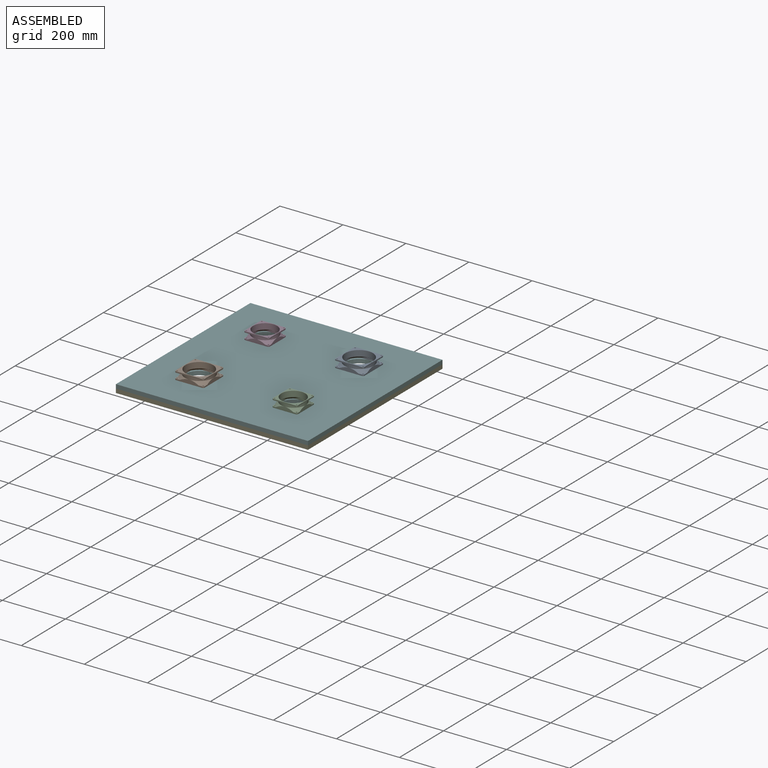
[diagram: assembled view]
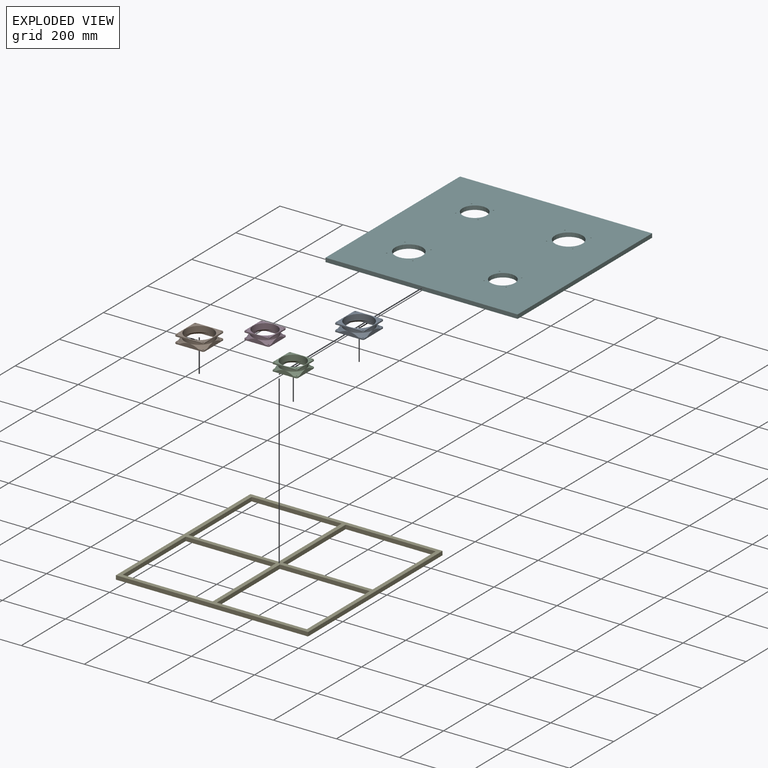
[diagram: exploded view]
GUIDED TOUR — MATED ASSEMBLY (Onshape document 30d36e8006467c0f0e39ad6a, AutoMate assembly 30d36e8006467c0f0e39ad6a_4de7a1119da5afe038f32a44_c5c404d7d82b2bcde68ec97a_default)

This assembly has 6 components, labeled P0..P5 below (a component is one placed occurrence of a part; the same part can appear more than once), held together by 15 mates. A mate is a constraint between two components; its type names the relative motion it leaves free:
  CYLINDRICAL — leaves both rotation about and translation along the listed axis free,
  PLANAR — leaves sliding in the plane through the listed point (normal = the listed direction) and rotation about that normal free.
Axis/direction vectors are unit vectors and 'through' points are millimeter coordinates, both in the assembly's world frame.

MATES
  1. CYLINDRICAL "Cylindrical 3": P2 <-> P5, axis (0.000, 0.000, -1.000) through (238.99, 5.92, 19.59) mm
  2. CYLINDRICAL "Cylindrical 7": P2 <-> P5, axis (0.000, 0.000, -1.000) through (203.84, 41.07, 8.20) mm
  3. PLANAR "Planar 4": P5 <-> P0, direction (0.000, 0.000, 1.000) through (89.77, 155.14, 3.34) mm
  4. PLANAR "Planar 1": P4 <-> P5, direction (0.000, 0.000, 1.000) through (89.77, 155.14, -9.36) mm
  5. PLANAR "Planar 5": P3 <-> P5, direction (0.000, 0.000, -1.000) through (-21.36, 328.71, 3.34) mm
  6. PLANAR "Planar 6": P5 <-> P2, direction (0.000, 0.000, 1.000) through (89.77, 155.14, 3.34) mm
  7. CYLINDRICAL "Cylindrical 8": P5 <-> P0, axis (0.000, 0.000, -1.000) through (197.65, 263.02, -3.01) mm
  8. CYLINDRICAL "Cylindrical 6": P1 <-> P5, axis (0.000, 0.000, -1.000) through (-18.11, 47.26, 5.34) mm
  9. CYLINDRICAL "Cylindrical 2": P3 <-> P5, axis (0.000, 0.000, -1.000) through (-59.46, 304.37, 19.59) mm
  10. CYLINDRICAL "Cylindrical 1": P0 <-> P5, axis (0.000, 0.000, -1.000) through (238.99, 304.37, 19.59) mm
  11. PLANAR "Planar 3": P5 <-> P4, direction (-1.000, 0.000, 0.000) through (-215.03, 155.14, -3.01) mm
  12. PLANAR "Planar 2": P5 <-> P4, direction (0.000, -1.000, 0.000) through (89.77, -149.66, -3.01) mm
  13. CYLINDRICAL "Cylindrical 4": P1 <-> P5, axis (0.000, 0.000, -1.000) through (-59.46, 5.92, 19.59) mm
  14. PLANAR "Planar 7": P1 <-> P5, direction (0.000, 0.000, -1.000) through (-59.46, 5.92, 3.34) mm
  15. CYLINDRICAL "Cylindrical 5": P5 <-> P3, axis (0.000, 0.000, -1.000) through (-24.30, 269.21, -3.01) mm

ASSEMBLY ORDER
  1. P3 — the base component [order verified]
  2. P1 [order verified]
  3. P2 [order verified]
  4. P0 [order verified]
  5. P5 [order verified]
  6. P4 [order verified]
Order-tag legend:
  [order verified] — this step's position reverses a verified removal order: the component was checked to insert without passing through the ones already placed.

Of the 6 components, 6 carry the full construction recipe — the FeatureScript program that regenerates the part's solid from scratch; the rest are supplied as boundary geometry only.
Each toured component is shown spotlighted twice — in the assembled view, then in the exploded view, where a leader line traces a displaced component back to its assembled socket (saturated green if recipe-attached, orange if geometry-only; every other component desaturated gray) — followed by its recipe or geometry summary and the mates that hold it.
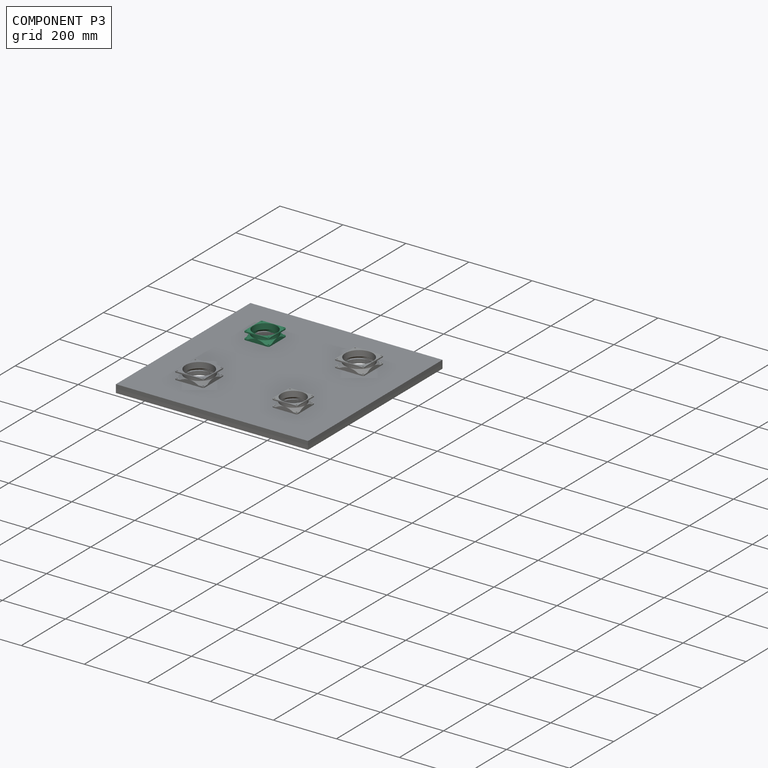
[diagram: component P3 — assembled]
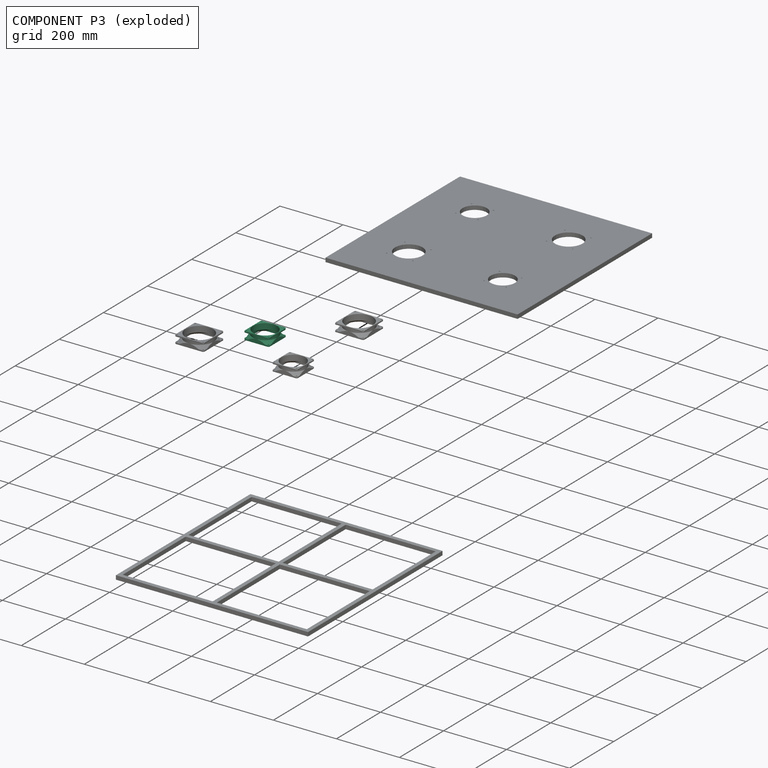
[diagram: component P3 — exploded]
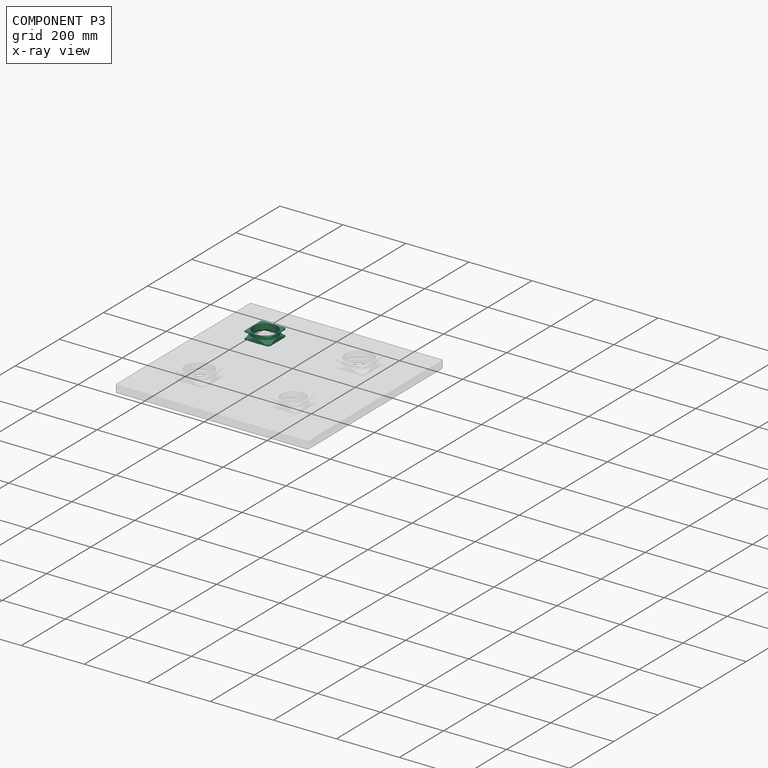
[diagram: component P3 — x-ray view]
COMPONENT P3 — same part as P2 (CADFS 00164789); its construction recipe is shown at P2.
Held by: PLANAR mate "Planar 5" to P5; CYLINDRICAL mate "Cylindrical 2" to P5; CYLINDRICAL mate "Cylindrical 5" to P5.
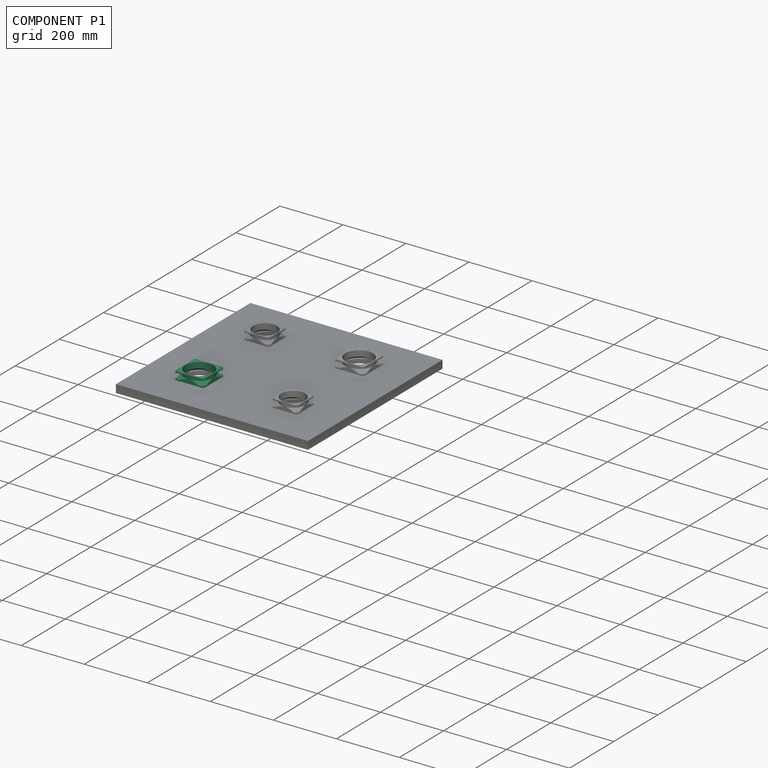
[diagram: component P1 — assembled]
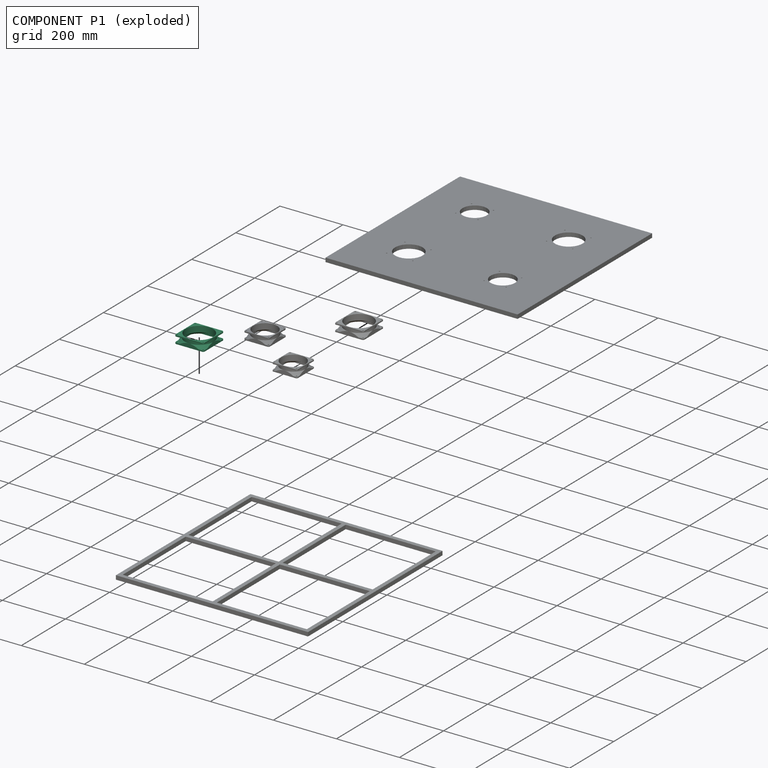
[diagram: component P1 — exploded]
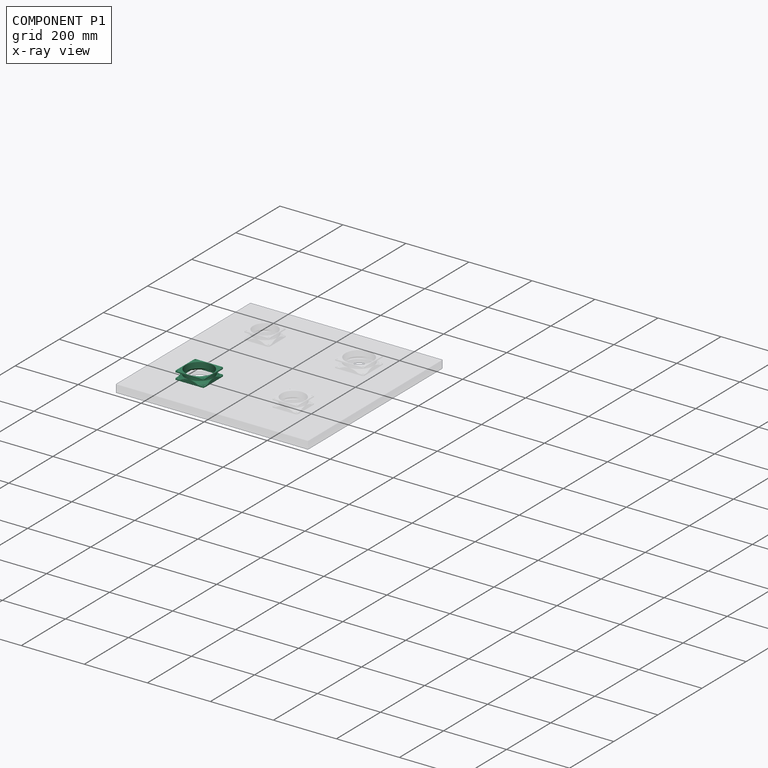
[diagram: component P1 — x-ray view]
COMPONENT P1 — same part as P0 (CADFS 00164776); its construction recipe is shown at P0.
Held by: CYLINDRICAL mate "Cylindrical 6" to P5; CYLINDRICAL mate "Cylindrical 4" to P5; PLANAR mate "Planar 7" to P5.
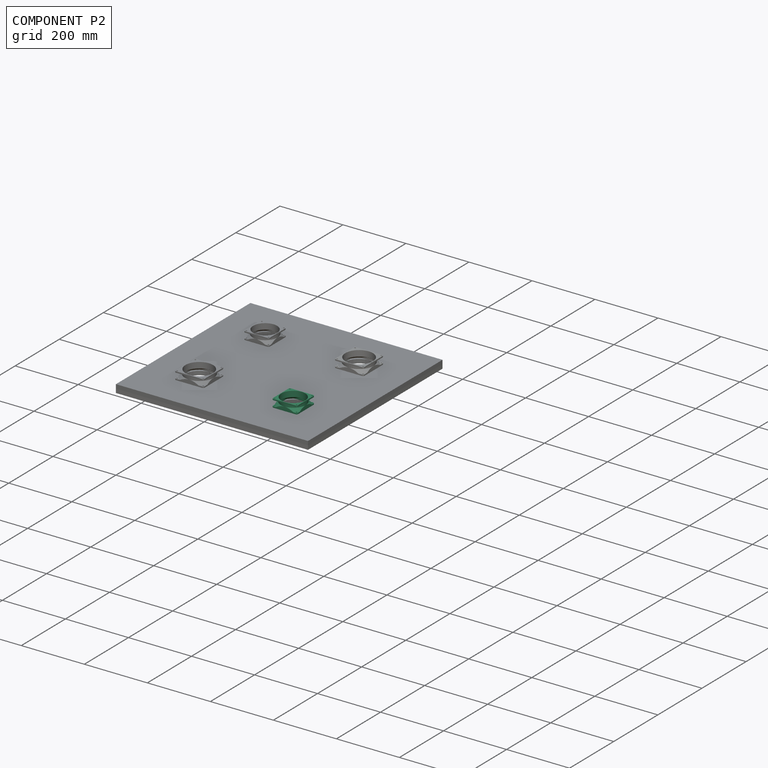
[diagram: component P2 — assembled]
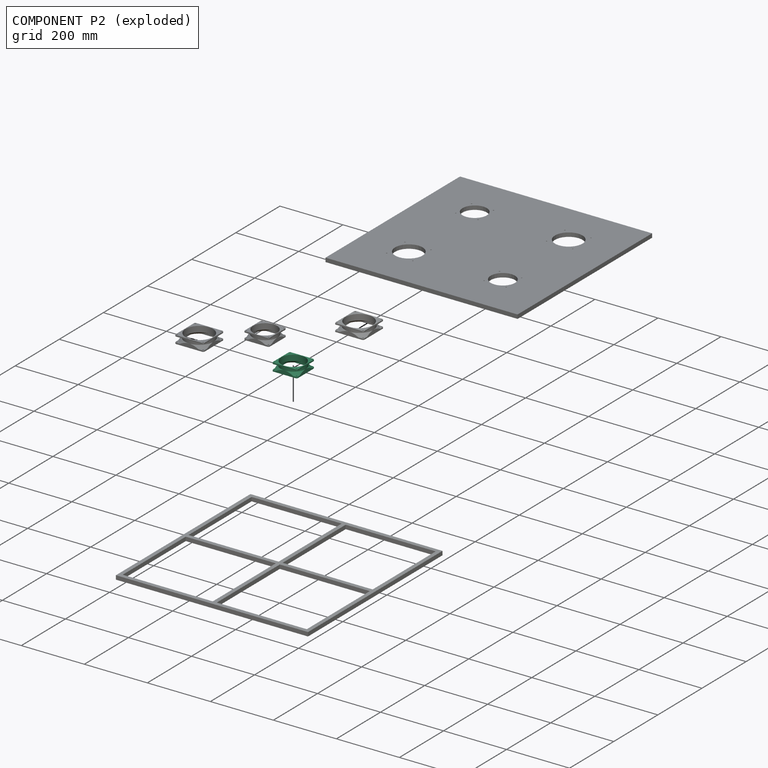
[diagram: component P2 — exploded]
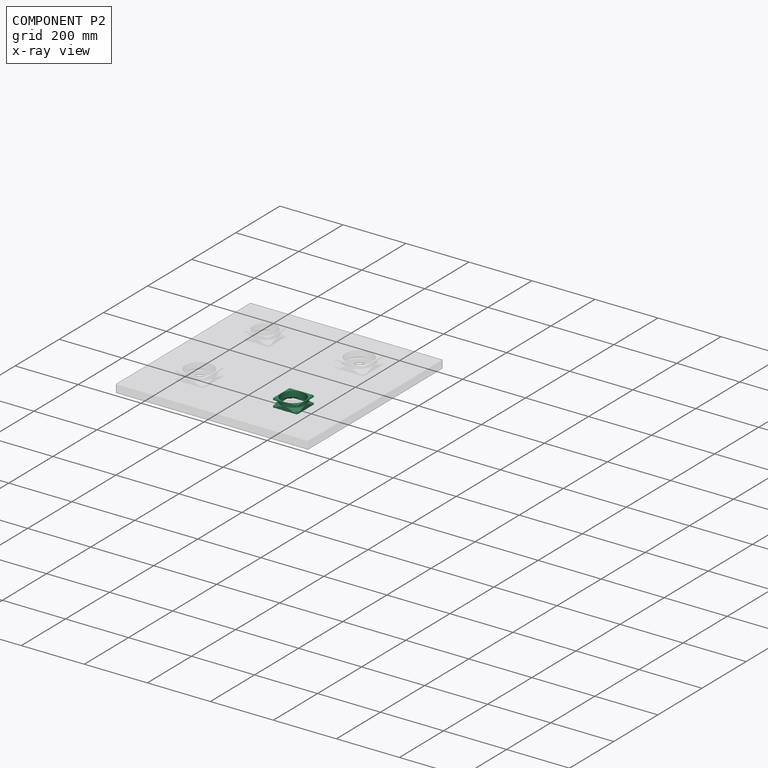
[diagram: component P2 — x-ray view]
COMPONENT P2 — recipe-attached (CADFS 00164789, mesh-verified: the recipe's output STEP matches this component's geometry to below the mesh-comparison resolution (tessellation chordal tolerance ~0.173 mm)).
Held by: CYLINDRICAL mate "Cylindrical 3" to P5; CYLINDRICAL mate "Cylindrical 7" to P5; PLANAR mate "Planar 6" to P5.
Construction recipe (FeatureScript — the CAD program that rebuilds this solid; sketch coordinates are in the units given by the * unit suffixes, e.g. mm):

FeatureScript 1511;
import(path : "onshape/std/geometry.fs", version : "1511.0");
import(path : "onshape/std/common.fs", version : "1511.0");
const mm = millimeter;
const VERTEX = EntityType.VERTEX;
const EDGE = EntityType.EDGE;
const FACE = EntityType.FACE;
const BODY = EntityType.BODY;
function v(x, y){return vector(x, y);}
function OD(order){return orderDisambiguation(order);}
function OSD(set){return originalSetDisambiguation(set);}
function TD(topology){return topologyDisambiguation(topology);}
function TDD(query){return trueDependencyDisambiguation(query);}
function sQuery(a, b, c) {return sketchEntityQuery(a, b, c);}

annotation { "Feature Type Name" : "Feature", "Feature Type Description" : "" }
export const myFeature = defineFeature(function(context is Context, id is Id, definition is map)
    precondition{}
    {
        {
            var Q0;
            Q0=qCreatedBy(makeId("Top.planeOp"),FACE);
            var sketch = newSketch(context, id + "F0", { "sketchPlane" : qUnion([Q0])});
            skLineSegment(sketch, "E0.bottom", {"start": v(39.69, 39.69) * mm, "end": v(-39.69, 39.69) * mm});
            skLineSegment(sketch, "E0.top", {"start": v(39.69, -39.69) * mm, "end": v(-39.69, -39.69) * mm});
            skLineSegment(sketch, "E0.left", {"start": v(39.69, 39.69) * mm, "end": v(39.69, -39.69) * mm});
            skLineSegment(sketch, "E0.right", {"start": v(-39.69, 39.69) * mm, "end": v(-39.69, -39.69) * mm});
            skPoint(sketch, "E0.middle", {"position": v(0, 0) * mm});
            skCircle(sketch, "E1", {"center": v(0, 0) * mm, "radius": 38.1 * mm});
            skLineSegment(sketch, "E2", {"start": v(35.15, 39.69) * mm, "end": v(35.15, 35.15) * mm, "construction": true});
            skLineSegment(sketch, "E3", {"start": v(35.15, 35.15) * mm, "end": v(39.69, 35.15) * mm, "construction": true});
            skLineSegment(sketch, "E4.bottom", {"start": v(35.15, 35.15) * mm, "end": v(-35.15, 35.15) * mm, "construction": true});
            skLineSegment(sketch, "E4.top", {"start": v(35.15, -35.15) * mm, "end": v(-35.15, -35.15) * mm, "construction": true});
            skLineSegment(sketch, "E4.left", {"start": v(35.15, 35.15) * mm, "end": v(35.15, -35.15) * mm, "construction": true});
            skLineSegment(sketch, "E4.right", {"start": v(-35.15, 35.15) * mm, "end": v(-35.15, -35.15) * mm, "construction": true});
            skCircle(sketch, "E5", {"center": v(35.15, 35.15) * mm, "radius": 2.15 * mm});
            skCircle(sketch, "E6", {"center": v(-35.15, 35.15) * mm, "radius": 2.15 * mm});
            skCircle(sketch, "E7", {"center": v(-35.15, -35.15) * mm, "radius": 2.15 * mm});
            skCircle(sketch, "E8", {"center": v(35.15, -35.15) * mm, "radius": 2.15 * mm});
            skSolve(sketch);
        }
        {
            var Q0;
            Q0=qSketchRegion(id+"F0",true);
            extrude(context, id + "F1", {"entities" : qUnion([Q0]), "depth" : 25.4 * mm});
        }
        {
            var Q0;
            Q0=makeQuery(id+"F1.opExtrude","SWEPT_EDGE",EDGE,{"disambiguationData":[OSD([sQuery(id+"F0.wireOp",EDGE,"E0.bottom"),sQuery(id+"F0.wireOp",EDGE,"E0.left")])]});
            var Q1;
            Q1=makeQuery(id+"F1.opExtrude","SWEPT_EDGE",EDGE,{"disambiguationData":[OSD([sQuery(id+"F0.wireOp",EDGE,"E0.top"),sQuery(id+"F0.wireOp",EDGE,"E0.right")])]});
            var Q2;
            Q2=makeQuery(id+"F1.opExtrude","SWEPT_EDGE",EDGE,{"disambiguationData":[OSD([sQuery(id+"F0.wireOp",EDGE,"E0.top"),sQuery(id+"F0.wireOp",EDGE,"E0.left")])]});
            var Q3;
            Q3=makeQuery(id+"F1.opExtrude","SWEPT_EDGE",EDGE,{"disambiguationData":[OSD([sQuery(id+"F0.wireOp",EDGE,"E0.bottom"),sQuery(id+"F0.wireOp",EDGE,"E0.right")])]});
            fillet(context, id + "F2", {"entities" : qUnion([Q0, Q1, Q2, Q3]), "radius" : 4.53 * mm, "tangentPropagation" : true, "allowEdgeOverflow" : false});
        }
        {
            var Q0;
            Q0=qCreatedBy(makeId("Right.planeOp"),FACE);
            var sketch = newSketch(context, id + "F3", { "sketchPlane" : qUnion([Q0])});
            skLineSegment(sketch, "E9.bottom", {"start": v(39.69, 21.4) * mm, "end": v(65.09, 21.4) * mm});
            skLineSegment(sketch, "E9.top", {"start": v(39.69, 4) * mm, "end": v(65.09, 4) * mm});
            skLineSegment(sketch, "E9.left", {"start": v(39.69, 21.4) * mm, "end": v(39.69, 4) * mm});
            skLineSegment(sketch, "E9.right", {"start": v(65.09, 21.4) * mm, "end": v(65.09, 4) * mm});
            skLineSegment(sketch, "E10", {"start": v(39.69, 21.4) * mm, "end": v(39.69, 25.4) * mm, "construction": true});
            skLineSegment(sketch, "E11", {"start": v(39.69, 4) * mm, "end": v(39.69, 0) * mm, "construction": true});
            skSolve(sketch);
        }
        {
            var Q0;
            Q0=qSketchRegion(id+"F3",true);
            var Q1;
            Q1=makeQuery(id+"F1.opExtrude","SWEPT_FACE",FACE,{"disambiguationData":[OSD([sQuery(id+"F0.wireOp",EDGE,"E1")])]});
            revolve(context, id + "F4", {"operationType" : NewBodyOperationType.REMOVE, "entities" : qUnion([Q0]), "axis" : qUnion([Q1]), "revolveType" : RevolveType.FULL, "oppositeDirection" : true});
        }
        {
            var Q0;
            {var subQ0=sQuery(id+"F3.wireOp",EDGE,"E9.top");var subQ1=sQuery(id+"F3.wireOp",EDGE,"E9.left");Q0=makeQuery(id+"F4.boolean.opBoolean","COPY",EDGE,{"disambiguationData":[TD([makeQuery(id+"F1.opExtrude","SWEPT_FACE",FACE,{"disambiguationData":[OSD([sQuery(id+"F0.wireOp",EDGE,"E0.bottom")])]}),makeQuery(id+"F1.opExtrude","SWEPT_FACE",FACE,{"disambiguationData":[OSD([sQuery(id+"F0.wireOp",EDGE,"E0.left")])]}),makeQuery(id+"F4.opRevolve","SWEPT_FACE",FACE,{"disambiguationData":[OSD([subQ0])]}),makeQuery(id+"F4.opRevolve","SWEPT_FACE",FACE,{"disambiguationData":[OSD([subQ1])]})])],"derivedFrom":makeQuery(id+"F4.opRevolve","SWEPT_EDGE",EDGE,{"disambiguationData":[OSD([subQ0,subQ1])]})});}
            chamfer(context, id + "F5", {"entities" : qUnion([Q0]), "width" : 8.7 * mm, "tangentPropagation" : true});
        }
        {
            var Q0;
            Q0=makeQuery(id+"F1.opExtrude","CAP_EDGE",EDGE,{"disambiguationData":[OSD([sQuery(id+"F0.wireOp",EDGE,"E1")])],"isStart":true});
            chamfer(context, id + "F6", {"entities" : qUnion([Q0]), "width" : 7.11 * mm, "tangentPropagation" : true});
        }
        {
            var Q0;
            Q0=makeQuery(id+"F6.opChamfer","SPLIT",FACE,{"disambiguationData":[OD(0.0)],"derivedFrom":makeQuery(id+"F1.opExtrude","CAP_FACE",FACE,{"disambiguationData":[OSD([sQuery(id+"F0.wireOp",EDGE,"E0.bottom"),sQuery(id+"F0.wireOp",EDGE,"E0.top"),sQuery(id+"F0.wireOp",EDGE,"E0.left"),sQuery(id+"F0.wireOp",EDGE,"E0.right"),sQuery(id+"F0.wireOp",EDGE,"E1"),sQuery(id+"F0.wireOp",EDGE,"E5"),sQuery(id+"F0.wireOp",EDGE,"E6"),sQuery(id+"F0.wireOp",EDGE,"E7"),sQuery(id+"F0.wireOp",EDGE,"E8")])],"isStart":true})});
            var sketch = newSketch(context, id + "F7", { "sketchPlane" : qUnion([Q0])});
            skLineSegment(sketch, "E12.bottom", {"start": v(24.34, -39.69) * mm, "end": v(-24.34, -39.69) * mm});
            skLineSegment(sketch, "E12.top", {"start": v(24.34, -38.1) * mm, "end": v(-24.34, -38.1) * mm});
            skLineSegment(sketch, "E12.left", {"start": v(24.34, -39.69) * mm, "end": v(24.34, -38.1) * mm});
            skLineSegment(sketch, "E12.right", {"start": v(-24.34, -39.69) * mm, "end": v(-24.34, -38.1) * mm});
            skLineSegment(sketch, "E13.bottom", {"start": v(38.1, 24.34) * mm, "end": v(39.69, 24.34) * mm});
            skLineSegment(sketch, "E13.top", {"start": v(38.1, -24.34) * mm, "end": v(39.69, -24.34) * mm});
            skLineSegment(sketch, "E13.left", {"start": v(38.1, 24.34) * mm, "end": v(38.1, -24.34) * mm});
            skLineSegment(sketch, "E13.right", {"start": v(39.69, 24.34) * mm, "end": v(39.69, -24.34) * mm});
            skLineSegment(sketch, "E14.bottom", {"start": v(-38.1, -24.34) * mm, "end": v(-39.69, -24.34) * mm});
            skLineSegment(sketch, "E14.top", {"start": v(-38.1, 24.34) * mm, "end": v(-39.69, 24.34) * mm});
            skLineSegment(sketch, "E14.left", {"start": v(-38.1, -24.34) * mm, "end": v(-38.1, 24.34) * mm});
            skLineSegment(sketch, "E14.right", {"start": v(-39.69, -24.34) * mm, "end": v(-39.69, 24.34) * mm});
            skLineSegment(sketch, "E15.bottom", {"start": v(24.34, 39.69) * mm, "end": v(-24.34, 39.69) * mm});
            skLineSegment(sketch, "E15.top", {"start": v(24.34, 38.1) * mm, "end": v(-24.34, 38.1) * mm});
            skLineSegment(sketch, "E15.left", {"start": v(24.34, 39.69) * mm, "end": v(24.34, 38.1) * mm});
            skLineSegment(sketch, "E15.right", {"start": v(-24.34, 39.69) * mm, "end": v(-24.34, 38.1) * mm});
            skLineSegment(sketch, "E16", {"start": v(0, -38.1) * mm, "end": v(0, 38.1) * mm, "construction": true});
            skLineSegment(sketch, "E17", {"start": v(38.1, 0) * mm, "end": v(-38.1, 0) * mm, "construction": true});
            skSolve(sketch);
        }
        {
            var Q0;
            Q0=qSketchRegion(id+"F7",true);
            var Q1;
            {var subQ0=sQuery(id+"F3.wireOp",EDGE,"E9.top");var subQ1=sQuery(id+"F3.wireOp",EDGE,"E9.left");Q1=makeQuery(id+"F5.opChamfer","BLEND_FACE",FACE,{"disambiguationData":[OSD([subQ0,subQ1]),TDD([makeQuery(id+"F4.boolean.opBoolean","COPY",EDGE,{"disambiguationData":[TD([makeQuery(id+"F1.opExtrude","SWEPT_FACE",FACE,{"disambiguationData":[OSD([sQuery(id+"F0.wireOp",EDGE,"E0.top")])]}),makeQuery(id+"F1.opExtrude","SWEPT_FACE",FACE,{"disambiguationData":[OSD([sQuery(id+"F0.wireOp",EDGE,"E0.left")])]}),makeQuery(id+"F4.opRevolve","SWEPT_FACE",FACE,{"disambiguationData":[OSD([subQ0])]}),makeQuery(id+"F4.opRevolve","SWEPT_FACE",FACE,{"disambiguationData":[OSD([subQ1])]})])],"derivedFrom":makeQuery(id+"F4.opRevolve","SWEPT_EDGE",EDGE,{"disambiguationData":[OSD([subQ0,subQ1])]})})])]});}
            extrude(context, id + "F8", {"entities" : qUnion([Q0]), "operationType" : NewBodyOperationType.ADD, "endBound" : BoundingType.UP_TO_SURFACE, "oppositeDirection" : true, "endBoundEntityFace" : qUnion([Q1]), "depth" : 25.4 * mm});
        }
    });
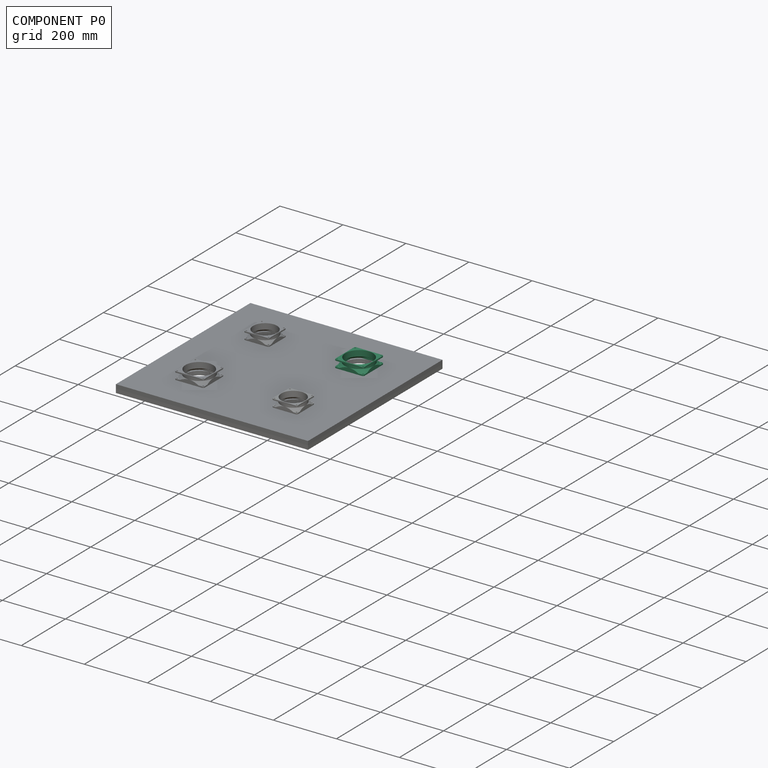
[diagram: component P0 — assembled]
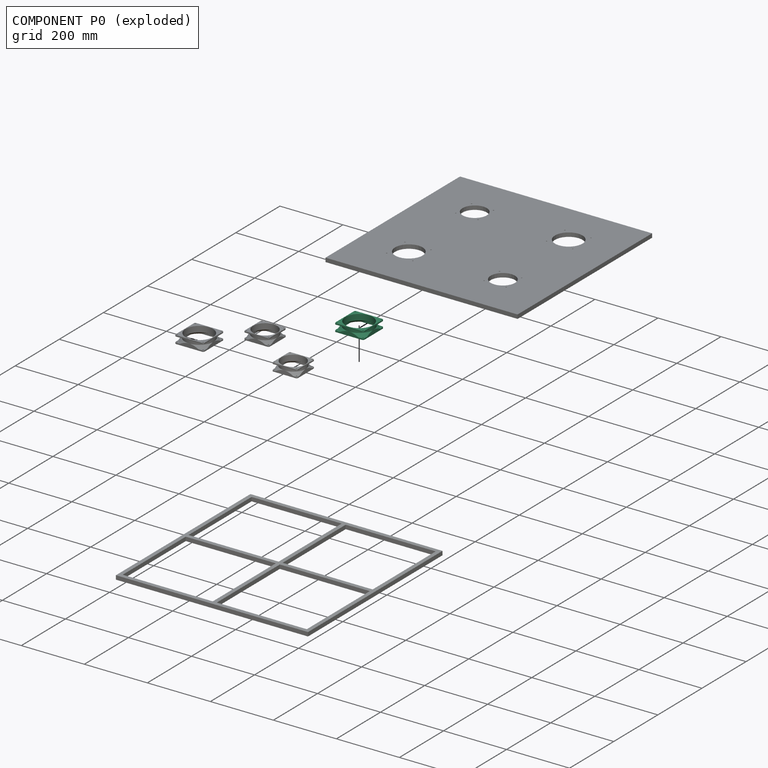
[diagram: component P0 — exploded]
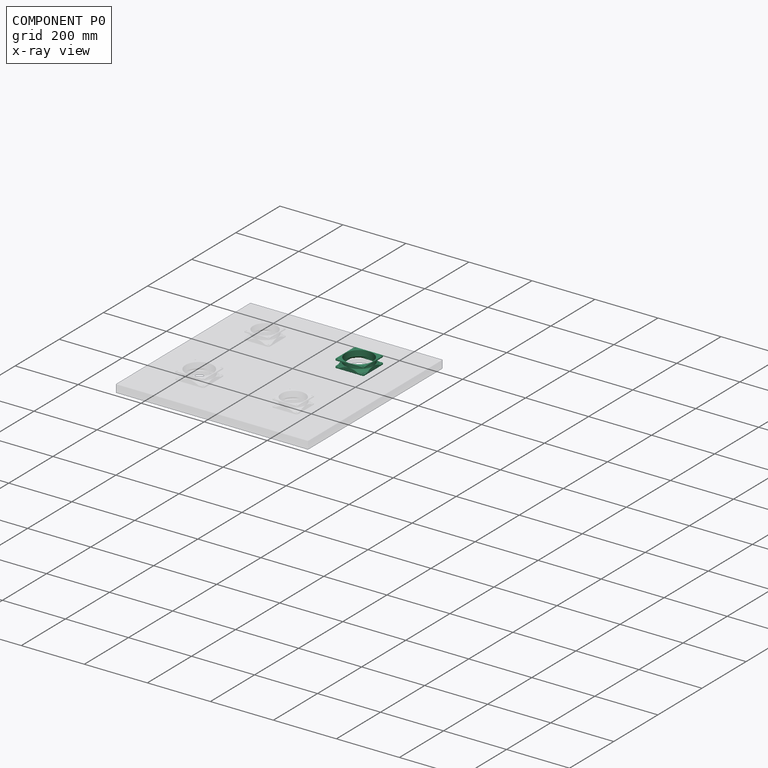
[diagram: component P0 — x-ray view]
COMPONENT P0 — recipe-attached (CADFS 00164776, mesh-verified: the recipe's output STEP matches this component's geometry to below the mesh-comparison resolution (tessellation chordal tolerance ~0.198 mm)).
Held by: PLANAR mate "Planar 4" to P5; CYLINDRICAL mate "Cylindrical 8" to P5; CYLINDRICAL mate "Cylindrical 1" to P5.
Construction recipe (FeatureScript — the CAD program that rebuilds this solid; sketch coordinates are in the units given by the * unit suffixes, e.g. mm):

FeatureScript 1511;
import(path : "onshape/std/geometry.fs", version : "1511.0");
import(path : "onshape/std/common.fs", version : "1511.0");
const mm = millimeter;
const VERTEX = EntityType.VERTEX;
const EDGE = EntityType.EDGE;
const FACE = EntityType.FACE;
const BODY = EntityType.BODY;
function v(x, y){return vector(x, y);}
function OD(order){return orderDisambiguation(order);}
function OSD(set){return originalSetDisambiguation(set);}
function TD(topology){return topologyDisambiguation(topology);}
function TDD(query){return trueDependencyDisambiguation(query);}
function sQuery(a, b, c) {return sketchEntityQuery(a, b, c);}

annotation { "Feature Type Name" : "Feature", "Feature Type Description" : "" }
export const myFeature = defineFeature(function(context is Context, id is Id, definition is map)
    precondition{}
    {
        {
            var Q0;
            Q0=qCreatedBy(makeId("Top.planeOp"),FACE);
            var sketch = newSketch(context, id + "F0", { "sketchPlane" : qUnion([Q0])});
            skLineSegment(sketch, "E0.bottom", {"start": v(45.88, 45.88) * mm, "end": v(-45.88, 45.88) * mm});
            skLineSegment(sketch, "E0.top", {"start": v(45.88, -45.88) * mm, "end": v(-45.88, -45.88) * mm});
            skLineSegment(sketch, "E0.left", {"start": v(45.88, 45.88) * mm, "end": v(45.88, -45.88) * mm});
            skLineSegment(sketch, "E0.right", {"start": v(-45.88, 45.88) * mm, "end": v(-45.88, -45.88) * mm});
            skPoint(sketch, "E0.middle", {"position": v(0, 0) * mm});
            skCircle(sketch, "E1", {"center": v(0, 0) * mm, "radius": 43.82 * mm});
            skLineSegment(sketch, "E2", {"start": v(41.34, 45.88) * mm, "end": v(41.34, 41.34) * mm, "construction": true});
            skLineSegment(sketch, "E3", {"start": v(41.34, 41.34) * mm, "end": v(45.88, 41.34) * mm, "construction": true});
            skLineSegment(sketch, "E4.bottom", {"start": v(41.34, 41.34) * mm, "end": v(-41.34, 41.34) * mm, "construction": true});
            skLineSegment(sketch, "E4.top", {"start": v(41.34, -41.34) * mm, "end": v(-41.34, -41.34) * mm, "construction": true});
            skLineSegment(sketch, "E4.left", {"start": v(41.34, 41.34) * mm, "end": v(41.34, -41.34) * mm, "construction": true});
            skLineSegment(sketch, "E4.right", {"start": v(-41.34, 41.34) * mm, "end": v(-41.34, -41.34) * mm, "construction": true});
            skCircle(sketch, "E5", {"center": v(41.34, 41.34) * mm, "radius": 2.15 * mm});
            skCircle(sketch, "E6", {"center": v(-41.34, 41.34) * mm, "radius": 2.15 * mm});
            skCircle(sketch, "E7", {"center": v(-41.34, -41.34) * mm, "radius": 2.15 * mm});
            skCircle(sketch, "E8", {"center": v(41.34, -41.34) * mm, "radius": 2.15 * mm});
            skSolve(sketch);
        }
        {
            var Q0;
            Q0 = qSketchRegion(id + "F0", true);
            extrude(context, id + "F1", {"entities" : qUnion([Q0]), "depth" : 25.4 * mm});
        }
        {
            var Q0;
            Q0=makeQuery(id+"F1.opExtrude","SWEPT_EDGE",EDGE,{"disambiguationData":[OSD([sQuery(id+"F0.wireOp",EDGE,"E0.bottom"),sQuery(id+"F0.wireOp",EDGE,"E0.left")])]});
            var Q1;
            Q1=makeQuery(id+"F1.opExtrude","SWEPT_EDGE",EDGE,{"disambiguationData":[OSD([sQuery(id+"F0.wireOp",EDGE,"E0.top"),sQuery(id+"F0.wireOp",EDGE,"E0.right")])]});
            var Q2;
            Q2=makeQuery(id+"F1.opExtrude","SWEPT_EDGE",EDGE,{"disambiguationData":[OSD([sQuery(id+"F0.wireOp",EDGE,"E0.top"),sQuery(id+"F0.wireOp",EDGE,"E0.left")])]});
            var Q3;
            Q3=makeQuery(id+"F1.opExtrude","SWEPT_EDGE",EDGE,{"disambiguationData":[OSD([sQuery(id+"F0.wireOp",EDGE,"E0.bottom"),sQuery(id+"F0.wireOp",EDGE,"E0.right")])]});
            fillet(context, id + "F2", {"entities" : qUnion([Q0, Q1, Q2, Q3]), "radius" : 4.53 * mm, "tangentPropagation" : true, "allowEdgeOverflow" : false});
        }
        {
            var Q0;
            Q0=qCreatedBy(makeId("Right.planeOp"),FACE);
            var sketch = newSketch(context, id + "F3", { "sketchPlane" : qUnion([Q0])});
            skLineSegment(sketch, "E9.bottom", {"start": v(45.88, 21.4) * mm, "end": v(71.28, 21.4) * mm});
            skLineSegment(sketch, "E9.top", {"start": v(45.88, 4) * mm, "end": v(71.28, 4) * mm});
            skLineSegment(sketch, "E9.left", {"start": v(45.88, 21.4) * mm, "end": v(45.88, 4) * mm});
            skLineSegment(sketch, "E9.right", {"start": v(71.28, 21.4) * mm, "end": v(71.28, 4) * mm});
            skLineSegment(sketch, "E10", {"start": v(45.88, 21.4) * mm, "end": v(45.88, 25.4) * mm, "construction": true});
            skLineSegment(sketch, "E11", {"start": v(45.88, 4) * mm, "end": v(45.88, 0) * mm, "construction": true});
            skSolve(sketch);
        }
        {
            var Q0;
            Q0 = qSketchRegion(id + "F3", true);
            var Q1;
            Q1=makeQuery(id+"F1.opExtrude","SWEPT_FACE",FACE,{"disambiguationData":[OSD([sQuery(id+"F0.wireOp",EDGE,"E1")])]});
            revolve(context, id + "F4", {"operationType" : NewBodyOperationType.REMOVE, "entities" : qUnion([Q0]), "axis" : qUnion([Q1]), "revolveType" : RevolveType.FULL, "oppositeDirection" : true});
        }
        {
            var Q0;
            {var subQ0=sQuery(id+"F3.wireOp",EDGE,"E9.top");var subQ1=sQuery(id+"F3.wireOp",EDGE,"E9.left");Q0=makeQuery(id+"F4.boolean.opBoolean","COPY",EDGE,{"disambiguationData":[TD([makeQuery(id+"F1.opExtrude","SWEPT_FACE",FACE,{"disambiguationData":[OSD([sQuery(id+"F0.wireOp",EDGE,"E0.bottom")])]}),makeQuery(id+"F1.opExtrude","SWEPT_FACE",FACE,{"disambiguationData":[OSD([sQuery(id+"F0.wireOp",EDGE,"E0.left")])]}),makeQuery(id+"F4.opRevolve","SWEPT_FACE",FACE,{"disambiguationData":[OSD([subQ0])]}),makeQuery(id+"F4.opRevolve","SWEPT_FACE",FACE,{"disambiguationData":[OSD([subQ1])]})])],"derivedFrom":makeQuery(id+"F4.opRevolve","SWEPT_EDGE",EDGE,{"disambiguationData":[OSD([subQ0,subQ1])]})});}
            chamfer(context, id + "F5", {"entities" : qUnion([Q0]), "width" : 8.7 * mm, "tangentPropagation" : true});
        }
        {
            var Q0;
            Q0=makeQuery(id+"F1.opExtrude","CAP_EDGE",EDGE,{"disambiguationData":[OSD([sQuery(id+"F0.wireOp",EDGE,"E1")])],"isStart":true});
            chamfer(context, id + "F6", {"entities" : qUnion([Q0]), "width" : 7.11 * mm, "tangentPropagation" : true});
        }
        {
            var Q0;
            Q0=makeQuery(id+"F6.opChamfer","SPLIT",FACE,{"disambiguationData":[OD(0.0)],"derivedFrom":makeQuery(id+"F1.opExtrude","CAP_FACE",FACE,{"disambiguationData":[OSD([sQuery(id+"F0.wireOp",EDGE,"E0.bottom"),sQuery(id+"F0.wireOp",EDGE,"E0.top"),sQuery(id+"F0.wireOp",EDGE,"E0.left"),sQuery(id+"F0.wireOp",EDGE,"E0.right"),sQuery(id+"F0.wireOp",EDGE,"E1"),sQuery(id+"F0.wireOp",EDGE,"E5"),sQuery(id+"F0.wireOp",EDGE,"E6"),sQuery(id+"F0.wireOp",EDGE,"E7"),sQuery(id+"F0.wireOp",EDGE,"E8")])],"isStart":true})});
            var sketch = newSketch(context, id + "F7", { "sketchPlane" : qUnion([Q0])});
            skLineSegment(sketch, "E12.bottom", {"start": v(25.14, -45.88) * mm, "end": v(-25.14, -45.88) * mm});
            skLineSegment(sketch, "E12.top", {"start": v(25.14, -44.3) * mm, "end": v(-25.14, -44.3) * mm});
            skLineSegment(sketch, "E12.left", {"start": v(25.14, -45.88) * mm, "end": v(25.14, -44.3) * mm});
            skLineSegment(sketch, "E12.right", {"start": v(-25.14, -45.88) * mm, "end": v(-25.14, -44.3) * mm});
            skLineSegment(sketch, "E13.bottom", {"start": v(44.3, 25.14) * mm, "end": v(45.88, 25.14) * mm});
            skLineSegment(sketch, "E13.top", {"start": v(44.3, -25.14) * mm, "end": v(45.88, -25.14) * mm});
            skLineSegment(sketch, "E13.left", {"start": v(44.3, 25.14) * mm, "end": v(44.3, -25.14) * mm});
            skLineSegment(sketch, "E13.right", {"start": v(45.88, 25.14) * mm, "end": v(45.88, -25.14) * mm});
            skLineSegment(sketch, "E14.bottom", {"start": v(-44.3, -25.14) * mm, "end": v(-45.88, -25.14) * mm});
            skLineSegment(sketch, "E14.top", {"start": v(-44.3, 25.14) * mm, "end": v(-45.88, 25.14) * mm});
            skLineSegment(sketch, "E14.left", {"start": v(-44.3, -25.14) * mm, "end": v(-44.3, 25.14) * mm});
            skLineSegment(sketch, "E14.right", {"start": v(-45.88, -25.14) * mm, "end": v(-45.88, 25.14) * mm});
            skLineSegment(sketch, "E15.bottom", {"start": v(25.14, 45.88) * mm, "end": v(-25.14, 45.88) * mm});
            skLineSegment(sketch, "E15.top", {"start": v(25.14, 44.3) * mm, "end": v(-25.14, 44.3) * mm});
            skLineSegment(sketch, "E15.left", {"start": v(25.14, 45.88) * mm, "end": v(25.14, 44.3) * mm});
            skLineSegment(sketch, "E15.right", {"start": v(-25.14, 45.88) * mm, "end": v(-25.14, 44.3) * mm});
            skLineSegment(sketch, "E16", {"start": v(0, -44.3) * mm, "end": v(0, 44.3) * mm, "construction": true});
            skLineSegment(sketch, "E17", {"start": v(44.3, 0) * mm, "end": v(-44.3, 0) * mm, "construction": true});
            skSolve(sketch);
        }
        {
            var Q0;
            Q0 = qSketchRegion(id + "F7", true);
            var Q1;
            {var subQ0=sQuery(id+"F3.wireOp",EDGE,"E9.top");var subQ1=sQuery(id+"F3.wireOp",EDGE,"E9.left");Q1=makeQuery(id+"F5.opChamfer","BLEND_FACE",FACE,{"disambiguationData":[OSD([subQ0,subQ1]),TDD([makeQuery(id+"F4.boolean.opBoolean","COPY",EDGE,{"disambiguationData":[TD([makeQuery(id+"F1.opExtrude","SWEPT_FACE",FACE,{"disambiguationData":[OSD([sQuery(id+"F0.wireOp",EDGE,"E0.top")])]}),makeQuery(id+"F1.opExtrude","SWEPT_FACE",FACE,{"disambiguationData":[OSD([sQuery(id+"F0.wireOp",EDGE,"E0.left")])]}),makeQuery(id+"F4.opRevolve","SWEPT_FACE",FACE,{"disambiguationData":[OSD([subQ0])]}),makeQuery(id+"F4.opRevolve","SWEPT_FACE",FACE,{"disambiguationData":[OSD([subQ1])]})])],"derivedFrom":makeQuery(id+"F4.opRevolve","SWEPT_EDGE",EDGE,{"disambiguationData":[OSD([subQ0,subQ1])]})})])]});}
            extrude(context, id + "F8", {"entities" : qUnion([Q0]), "operationType" : NewBodyOperationType.ADD, "endBound" : BoundingType.UP_TO_SURFACE, "oppositeDirection" : true, "endBoundEntityFace" : qUnion([Q1]), "depth" : 25.4 * mm});
        }
    });
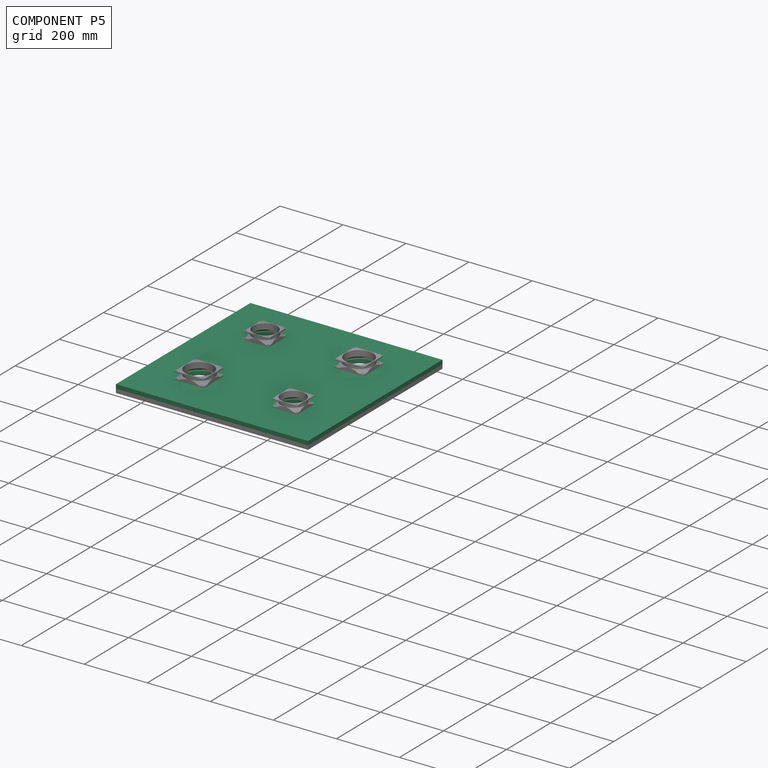
[diagram: component P5 — assembled]
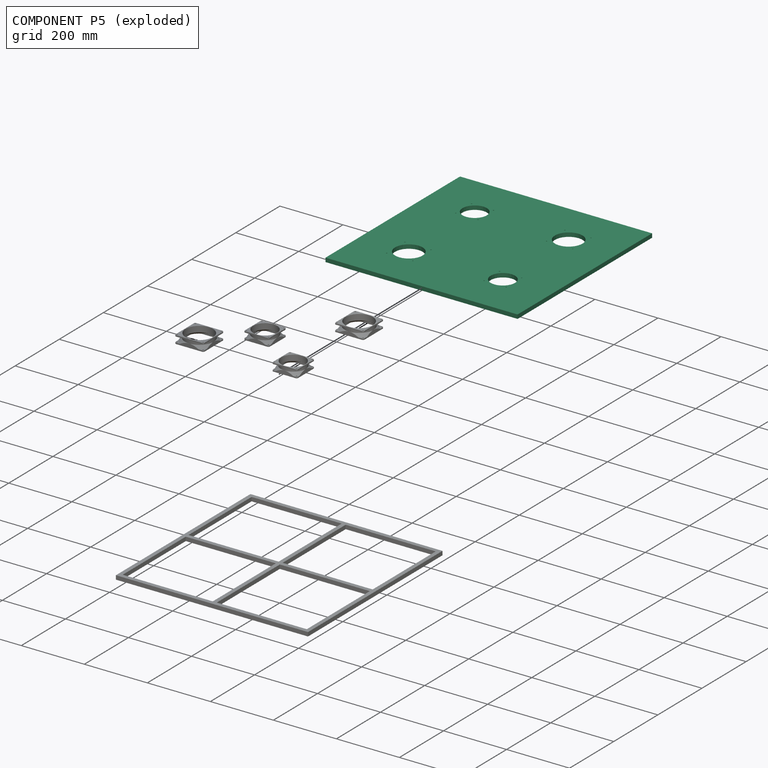
[diagram: component P5 — exploded]
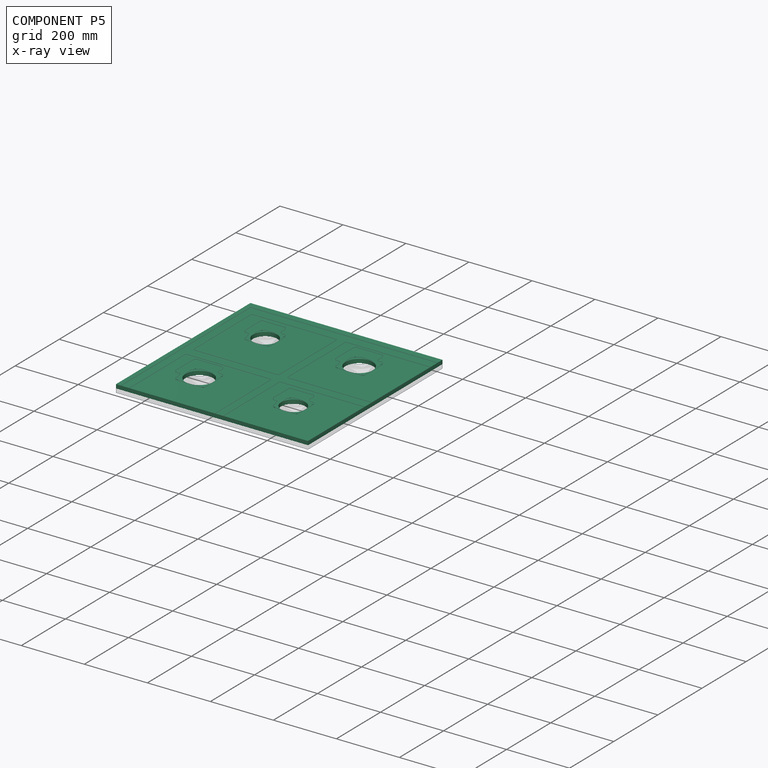
[diagram: component P5 — x-ray view]
COMPONENT P5 — recipe-attached (CADFS 00164772, mesh-verified: the recipe's output STEP matches this component's geometry to below the mesh-comparison resolution (tessellation chordal tolerance ~1.29 mm)).
Held by: CYLINDRICAL mate "Cylindrical 3" to P2; CYLINDRICAL mate "Cylindrical 7" to P2; PLANAR mate "Planar 4" to P0; PLANAR mate "Planar 1" to P4; PLANAR mate "Planar 5" to P3; PLANAR mate "Planar 6" to P2; CYLINDRICAL mate "Cylindrical 8" to P0; CYLINDRICAL mate "Cylindrical 6" to P1; CYLINDRICAL mate "Cylindrical 2" to P3; CYLINDRICAL mate "Cylindrical 1" to P0; PLANAR mate "Planar 3" to P4; PLANAR mate "Planar 2" to P4; CYLINDRICAL mate "Cylindrical 4" to P1; PLANAR mate "Planar 7" to P1; CYLINDRICAL mate "Cylindrical 5" to P3.
Construction recipe (FeatureScript — the CAD program that rebuilds this solid; sketch coordinates are in the units given by the * unit suffixes, e.g. mm):

FeatureScript 1511;
import(path : "onshape/std/geometry.fs", version : "1511.0");
import(path : "onshape/std/common.fs", version : "1511.0");
const mm = millimeter;
const VERTEX = EntityType.VERTEX;
const EDGE = EntityType.EDGE;
const FACE = EntityType.FACE;
const BODY = EntityType.BODY;
function v(x, y){return vector(x, y);}
function OD(order){return orderDisambiguation(order);}
function OSD(set){return originalSetDisambiguation(set);}
function TD(topology){return topologyDisambiguation(topology);}
function TDD(query){return trueDependencyDisambiguation(query);}
function sQuery(a, b, c) {return sketchEntityQuery(a, b, c);}

annotation { "Feature Type Name" : "Feature", "Feature Type Description" : "" }
export const myFeature = defineFeature(function(context is Context, id is Id, definition is map)
    precondition{}
    {
        {
            var Q0;
            Q0=qCreatedBy(makeId("Top.planeOp"),FACE);
            var sketch = newSketch(context, id + "F0", { "sketchPlane" : qUnion([Q0])});
            skLineSegment(sketch, "E0.bottom", {"start": v(304.8, 304.8) * mm, "end": v(-304.8, 304.8) * mm});
            skLineSegment(sketch, "E0.top", {"start": v(304.8, -304.8) * mm, "end": v(-304.8, -304.8) * mm});
            skLineSegment(sketch, "E0.left", {"start": v(304.8, 304.8) * mm, "end": v(304.8, -304.8) * mm});
            skLineSegment(sketch, "E0.right", {"start": v(-304.8, 304.8) * mm, "end": v(-304.8, -304.8) * mm});
            skPoint(sketch, "E0.middle", {"position": v(0, 0) * mm});
            skLineSegment(sketch, "E1.bottom", {"start": v(6.35, 6.35) * mm, "end": v(-6.35, 6.35) * mm, "construction": true});
            skLineSegment(sketch, "E1.top", {"start": v(6.35, -6.35) * mm, "end": v(-6.35, -6.35) * mm, "construction": true});
            skLineSegment(sketch, "E1.left", {"start": v(6.35, 6.35) * mm, "end": v(6.35, -6.35) * mm, "construction": true});
            skLineSegment(sketch, "E1.right", {"start": v(-6.35, 6.35) * mm, "end": v(-6.35, -6.35) * mm, "construction": true});
            skLineSegment(sketch, "E2.bottom", {"start": v(6.35, 6.35) * mm, "end": v(292.1, 6.35) * mm, "construction": true});
            skLineSegment(sketch, "E2.top", {"start": v(6.35, 292.1) * mm, "end": v(292.1, 292.1) * mm, "construction": true});
            skLineSegment(sketch, "E2.left", {"start": v(6.35, 6.35) * mm, "end": v(6.35, 292.1) * mm, "construction": true});
            skLineSegment(sketch, "E2.right", {"start": v(292.1, 6.35) * mm, "end": v(292.1, 292.1) * mm, "construction": true});
            skLineSegment(sketch, "E3.bottom", {"start": v(-6.35, 6.35) * mm, "end": v(-292.1, 6.35) * mm, "construction": true});
            skLineSegment(sketch, "E3.top", {"start": v(-6.35, 292.1) * mm, "end": v(-292.1, 292.1) * mm, "construction": true});
            skLineSegment(sketch, "E3.left", {"start": v(-6.35, 6.35) * mm, "end": v(-6.35, 292.1) * mm, "construction": true});
            skLineSegment(sketch, "E3.right", {"start": v(-292.1, 6.35) * mm, "end": v(-292.1, 292.1) * mm, "construction": true});
            skLineSegment(sketch, "E4.bottom", {"start": v(-6.35, -6.35) * mm, "end": v(-292.1, -6.35) * mm, "construction": true});
            skLineSegment(sketch, "E4.top", {"start": v(-6.35, -292.1) * mm, "end": v(-292.1, -292.1) * mm, "construction": true});
            skLineSegment(sketch, "E4.left", {"start": v(-6.35, -6.35) * mm, "end": v(-6.35, -292.1) * mm, "construction": true});
            skLineSegment(sketch, "E4.right", {"start": v(-292.1, -6.35) * mm, "end": v(-292.1, -292.1) * mm, "construction": true});
            skLineSegment(sketch, "E5.bottom", {"start": v(6.35, -6.35) * mm, "end": v(292.1, -6.35) * mm, "construction": true});
            skLineSegment(sketch, "E5.top", {"start": v(6.35, -292.1) * mm, "end": v(292.1, -292.1) * mm, "construction": true});
            skLineSegment(sketch, "E5.left", {"start": v(6.35, -6.35) * mm, "end": v(6.35, -292.1) * mm, "construction": true});
            skLineSegment(sketch, "E5.right", {"start": v(292.1, -6.35) * mm, "end": v(292.1, -292.1) * mm, "construction": true});
            skLineSegment(sketch, "E6", {"start": v(-292.1, 292.1) * mm, "end": v(-304.8, 292.1) * mm, "construction": true});
            skLineSegment(sketch, "E7", {"start": v(-292.1, 292.1) * mm, "end": v(-292.1, 304.8) * mm, "construction": true});
            skLineSegment(sketch, "E8", {"start": v(-149.23, -6.35) * mm, "end": v(-149.22, -292.1) * mm, "construction": true});
            skLineSegment(sketch, "E9", {"start": v(149.22, -6.35) * mm, "end": v(149.22, -292.1) * mm, "construction": true});
            skLineSegment(sketch, "E10", {"start": v(-149.22, 6.35) * mm, "end": v(-149.22, 292.1) * mm, "construction": true});
            skLineSegment(sketch, "E11", {"start": v(149.22, 292.1) * mm, "end": v(149.22, 6.35) * mm, "construction": true});
            skCircle(sketch, "E12", {"center": v(-149.23, 149.22) * mm, "radius": 43.87 * mm});
            skCircle(sketch, "E13", {"center": v(149.22, 149.23) * mm, "radius": 38.73 * mm});
            skCircle(sketch, "E14", {"center": v(149.22, -149.22) * mm, "radius": 43.87 * mm});
            skCircle(sketch, "E15", {"center": v(-149.22, -149.22) * mm, "radius": 38.73 * mm});
            skLineSegment(sketch, "E16.bottom", {"start": v(-107.88, 107.88) * mm, "end": v(-190.57, 107.88) * mm, "construction": true});
            skLineSegment(sketch, "E16.top", {"start": v(-107.88, 190.57) * mm, "end": v(-190.57, 190.57) * mm, "construction": true});
            skLineSegment(sketch, "E16.left", {"start": v(-107.88, 107.88) * mm, "end": v(-107.88, 190.57) * mm, "construction": true});
            skLineSegment(sketch, "E16.right", {"start": v(-190.57, 107.88) * mm, "end": v(-190.57, 190.57) * mm, "construction": true});
            skLineSegment(sketch, "E17.bottom", {"start": v(114.07, 114.07) * mm, "end": v(184.38, 114.07) * mm, "construction": true});
            skLineSegment(sketch, "E17.top", {"start": v(114.07, 184.38) * mm, "end": v(184.38, 184.38) * mm, "construction": true});
            skLineSegment(sketch, "E17.left", {"start": v(114.07, 114.07) * mm, "end": v(114.07, 184.38) * mm, "construction": true});
            skLineSegment(sketch, "E17.right", {"start": v(184.38, 114.07) * mm, "end": v(184.38, 184.38) * mm, "construction": true});
            skLineSegment(sketch, "E18.bottom", {"start": v(190.57, -190.57) * mm, "end": v(107.88, -190.57) * mm, "construction": true});
            skLineSegment(sketch, "E18.top", {"start": v(190.57, -107.88) * mm, "end": v(107.88, -107.88) * mm, "construction": true});
            skLineSegment(sketch, "E18.left", {"start": v(190.57, -190.57) * mm, "end": v(190.57, -107.88) * mm, "construction": true});
            skLineSegment(sketch, "E18.right", {"start": v(107.88, -190.57) * mm, "end": v(107.88, -107.88) * mm, "construction": true});
            skLineSegment(sketch, "E19.bottom", {"start": v(-114.07, -184.38) * mm, "end": v(-184.38, -184.38) * mm, "construction": true});
            skLineSegment(sketch, "E19.top", {"start": v(-114.07, -114.07) * mm, "end": v(-184.38, -114.07) * mm, "construction": true});
            skLineSegment(sketch, "E19.left", {"start": v(-114.07, -184.38) * mm, "end": v(-114.07, -114.07) * mm, "construction": true});
            skLineSegment(sketch, "E19.right", {"start": v(-184.38, -184.38) * mm, "end": v(-184.38, -114.07) * mm, "construction": true});
            skCircle(sketch, "E20", {"center": v(-107.88, 190.57) * mm, "radius": 1.83 * mm});
            skCircle(sketch, "E21", {"center": v(-190.57, 190.57) * mm, "radius": 1.83 * mm});
            skCircle(sketch, "E22", {"center": v(-190.57, 107.88) * mm, "radius": 1.83 * mm});
            skCircle(sketch, "E23", {"center": v(-107.88, 107.88) * mm, "radius": 1.83 * mm});
            skCircle(sketch, "E24", {"center": v(114.07, 114.07) * mm, "radius": 1.83 * mm});
            skCircle(sketch, "E25", {"center": v(114.07, 184.38) * mm, "radius": 1.83 * mm});
            skCircle(sketch, "E26", {"center": v(184.38, 114.07) * mm, "radius": 1.83 * mm});
            skCircle(sketch, "E27", {"center": v(184.38, 184.38) * mm, "radius": 1.83 * mm});
            skCircle(sketch, "E28", {"center": v(-184.38, -114.07) * mm, "radius": 1.83 * mm});
            skCircle(sketch, "E29", {"center": v(-114.07, -114.07) * mm, "radius": 1.83 * mm});
            skCircle(sketch, "E30", {"center": v(-184.38, -184.38) * mm, "radius": 1.83 * mm});
            skCircle(sketch, "E31", {"center": v(-114.07, -184.38) * mm, "radius": 1.83 * mm});
            skCircle(sketch, "E32", {"center": v(107.88, -190.57) * mm, "radius": 1.83 * mm});
            skCircle(sketch, "E33", {"center": v(107.88, -107.88) * mm, "radius": 1.83 * mm});
            skCircle(sketch, "E34", {"center": v(190.57, -107.88) * mm, "radius": 1.83 * mm});
            skCircle(sketch, "E35", {"center": v(190.57, -190.57) * mm, "radius": 1.83 * mm});
            skSolve(sketch);
        }
        {
            var Q0;
            Q0=qSketchRegion(id+"F0",true);
            extrude(context, id + "F1", {"entities" : qUnion([Q0]), "depth" : 12.7 * mm});
        }
    });
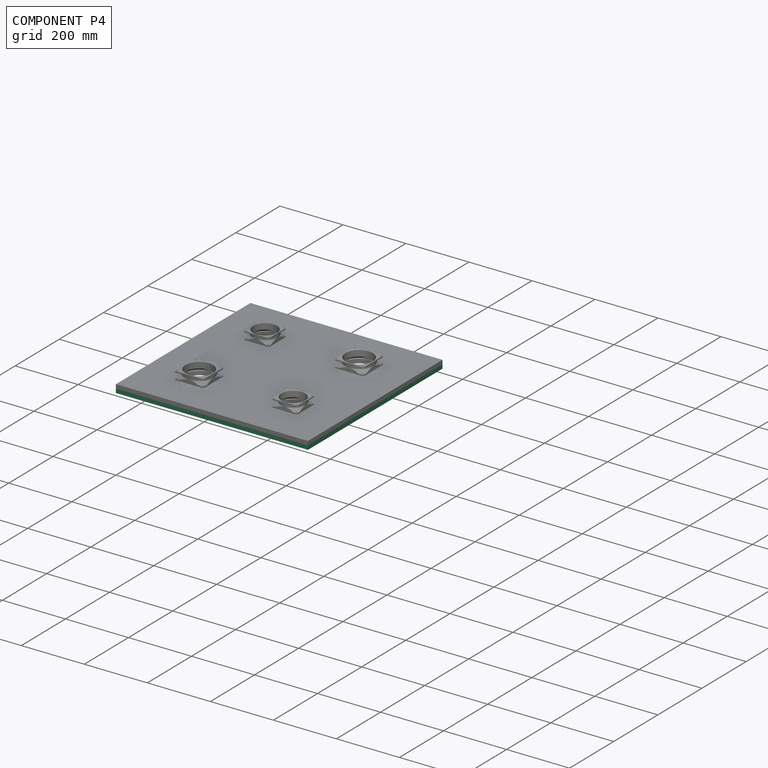
[diagram: component P4 — assembled]
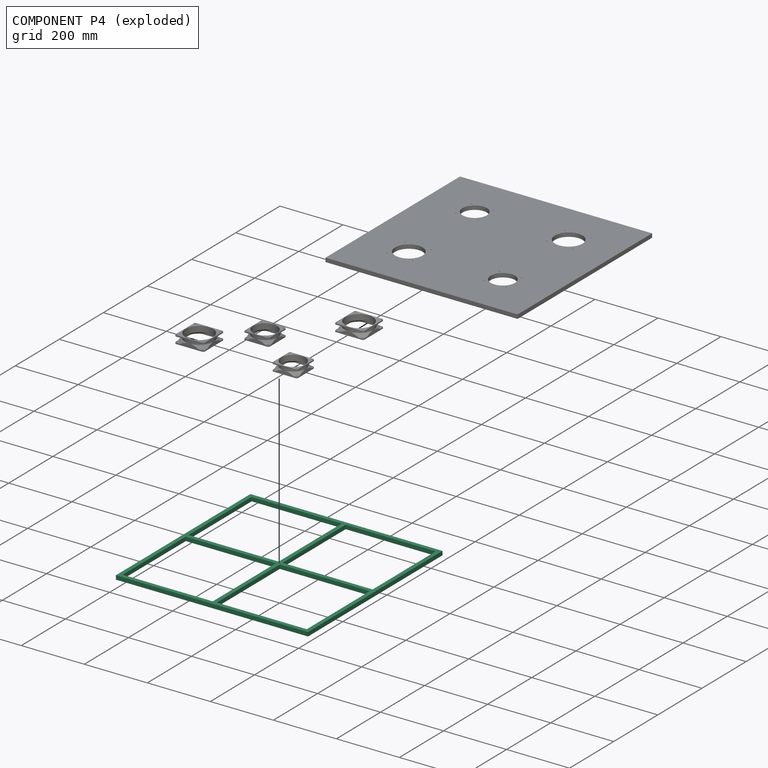
[diagram: component P4 — exploded]
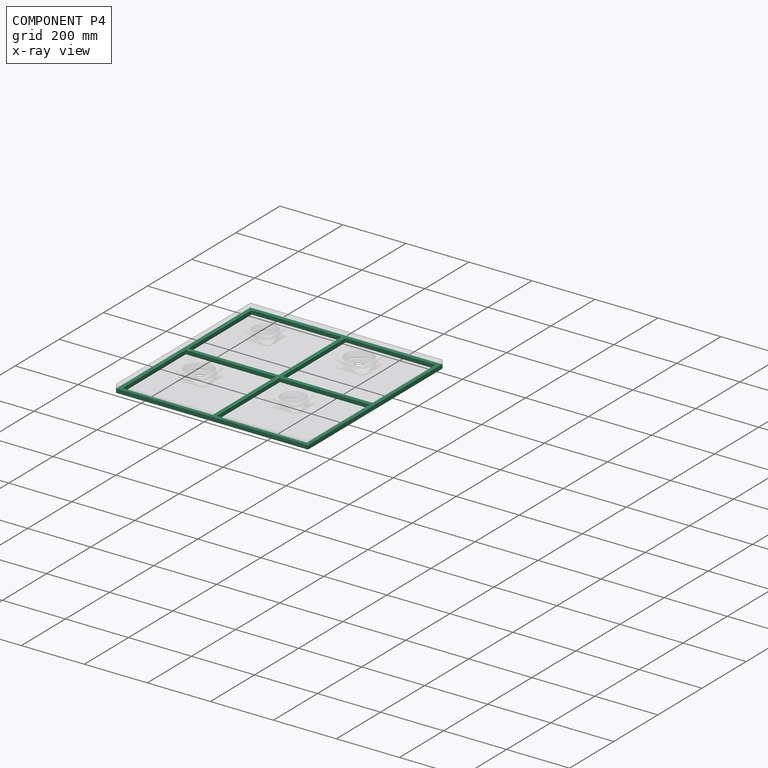
[diagram: component P4 — x-ray view]
COMPONENT P4 — recipe-attached (CADFS 00164770, mesh-verified: the recipe's output STEP matches this component's geometry to below the mesh-comparison resolution (tessellation chordal tolerance ~1.29 mm)).
Held by: PLANAR mate "Planar 1" to P5; PLANAR mate "Planar 3" to P5; PLANAR mate "Planar 2" to P5.
Construction recipe (FeatureScript — the CAD program that rebuilds this solid; sketch coordinates are in the units given by the * unit suffixes, e.g. mm):

FeatureScript 1511;
import(path : "onshape/std/geometry.fs", version : "1511.0");
import(path : "onshape/std/common.fs", version : "1511.0");
const mm = millimeter;
const VERTEX = EntityType.VERTEX;
const EDGE = EntityType.EDGE;
const FACE = EntityType.FACE;
const BODY = EntityType.BODY;
function v(x, y){return vector(x, y);}
function OD(order){return orderDisambiguation(order);}
function OSD(set){return originalSetDisambiguation(set);}
function TD(topology){return topologyDisambiguation(topology);}
function TDD(query){return trueDependencyDisambiguation(query);}
function sQuery(a, b, c) {return sketchEntityQuery(a, b, c);}

annotation { "Feature Type Name" : "Feature", "Feature Type Description" : "" }
export const myFeature = defineFeature(function(context is Context, id is Id, definition is map)
    precondition{}
    {
        {
            var Q0;
            Q0=qCreatedBy(makeId("Top.planeOp"),FACE);
            var sketch = newSketch(context, id + "F0", { "sketchPlane" : qUnion([Q0])});
            skLineSegment(sketch, "E0.bottom", {"start": v(304.8, 304.8) * mm, "end": v(-304.8, 304.8) * mm});
            skLineSegment(sketch, "E0.top", {"start": v(304.8, -304.8) * mm, "end": v(-304.8, -304.8) * mm});
            skLineSegment(sketch, "E0.left", {"start": v(304.8, 304.8) * mm, "end": v(304.8, -304.8) * mm});
            skLineSegment(sketch, "E0.right", {"start": v(-304.8, 304.8) * mm, "end": v(-304.8, -304.8) * mm});
            skPoint(sketch, "E0.middle", {"position": v(0, 0) * mm});
            skLineSegment(sketch, "E1.bottom", {"start": v(6.35, 6.35) * mm, "end": v(-6.35, 6.35) * mm, "construction": true});
            skLineSegment(sketch, "E1.top", {"start": v(6.35, -6.35) * mm, "end": v(-6.35, -6.35) * mm, "construction": true});
            skLineSegment(sketch, "E1.left", {"start": v(6.35, 6.35) * mm, "end": v(6.35, -6.35) * mm, "construction": true});
            skLineSegment(sketch, "E1.right", {"start": v(-6.35, 6.35) * mm, "end": v(-6.35, -6.35) * mm, "construction": true});
            skLineSegment(sketch, "E2.bottom", {"start": v(6.35, 6.35) * mm, "end": v(292.1, 6.35) * mm});
            skLineSegment(sketch, "E2.top", {"start": v(6.35, 292.1) * mm, "end": v(292.1, 292.1) * mm});
            skLineSegment(sketch, "E2.left", {"start": v(6.35, 6.35) * mm, "end": v(6.35, 292.1) * mm});
            skLineSegment(sketch, "E2.right", {"start": v(292.1, 6.35) * mm, "end": v(292.1, 292.1) * mm});
            skLineSegment(sketch, "E3.bottom", {"start": v(-6.35, 6.35) * mm, "end": v(-292.1, 6.35) * mm});
            skLineSegment(sketch, "E3.top", {"start": v(-6.35, 292.1) * mm, "end": v(-292.1, 292.1) * mm});
            skLineSegment(sketch, "E3.left", {"start": v(-6.35, 6.35) * mm, "end": v(-6.35, 292.1) * mm});
            skLineSegment(sketch, "E3.right", {"start": v(-292.1, 6.35) * mm, "end": v(-292.1, 292.1) * mm});
            skLineSegment(sketch, "E4.bottom", {"start": v(-6.35, -6.35) * mm, "end": v(-292.1, -6.35) * mm});
            skLineSegment(sketch, "E4.top", {"start": v(-6.35, -292.1) * mm, "end": v(-292.1, -292.1) * mm});
            skLineSegment(sketch, "E4.left", {"start": v(-6.35, -6.35) * mm, "end": v(-6.35, -292.1) * mm});
            skLineSegment(sketch, "E4.right", {"start": v(-292.1, -6.35) * mm, "end": v(-292.1, -292.1) * mm});
            skLineSegment(sketch, "E5.bottom", {"start": v(6.35, -6.35) * mm, "end": v(292.1, -6.35) * mm});
            skLineSegment(sketch, "E5.top", {"start": v(6.35, -292.1) * mm, "end": v(292.1, -292.1) * mm});
            skLineSegment(sketch, "E5.left", {"start": v(6.35, -6.35) * mm, "end": v(6.35, -292.1) * mm});
            skLineSegment(sketch, "E5.right", {"start": v(292.1, -6.35) * mm, "end": v(292.1, -292.1) * mm});
            skLineSegment(sketch, "E6", {"start": v(-292.1, 292.1) * mm, "end": v(-304.8, 292.1) * mm, "construction": true});
            skLineSegment(sketch, "E7", {"start": v(-292.1, 292.1) * mm, "end": v(-292.1, 304.8) * mm, "construction": true});
            skSolve(sketch);
        }
        {
            var Q0;
            Q0 = qSketchRegion(id + "F0", true);
            extrude(context, id + "F1", {"entities" : qUnion([Q0]), "depth" : 12.7 * mm});
        }
    });
PROVENANCE & LICENSES
Assembly (occurrences, transforms, mates, per-part STEP geometry): AutoMate dataset, Zenodo record 7776208, CC0.
Construction recipes: CADFS (HuggingFace VladPyatov/CADFS, CC-BY-4.0, layered over the ABC dataset), FeatureScript reconstruction programs keyed by ABC model id.
Join: ABC meta listings map ABC model id -> Onshape documentId; within a shared document, parts are matched by geometric signature (bounding-box dims + volume at 0.1% relative tolerance, exact B-rep face/solid counts).
Verification: 6 of this assembly's 6 components carry a recipe attachment, and every attachment is mesh-verified: the CADFS STEP and the AutoMate member STEP were compared as meshes in their shared local frame (symmetric sampled-point-to-mesh distance); worst across the 6 attachments: below the mesh-comparison resolution (tessellation chordal tolerance ~1.29 mm) on a 862 mm part.
Renders: orthographic iso camera (az 35 / el 25); the floor grid conveys scale (grid pitch printed in each image; no ruler). In the exploded view each component is displaced by its stored offset vector: the offsets alone carry the explosion direction (mate normal/axis signs are not orientation cues and do not encode it), and separation distances are assigned per mate-chain, not proportionally to assembly-order depth.
